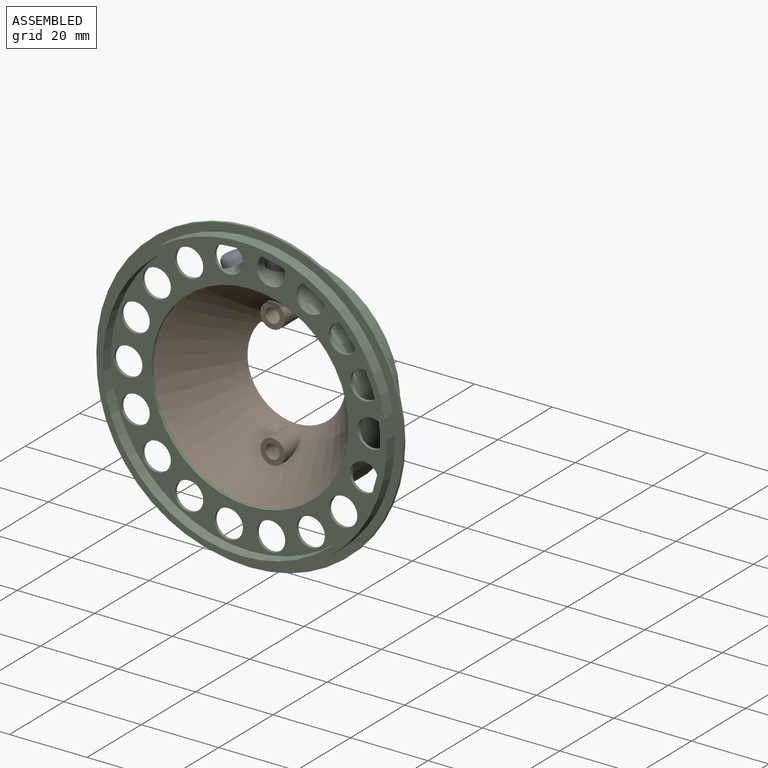
[diagram: assembled view]
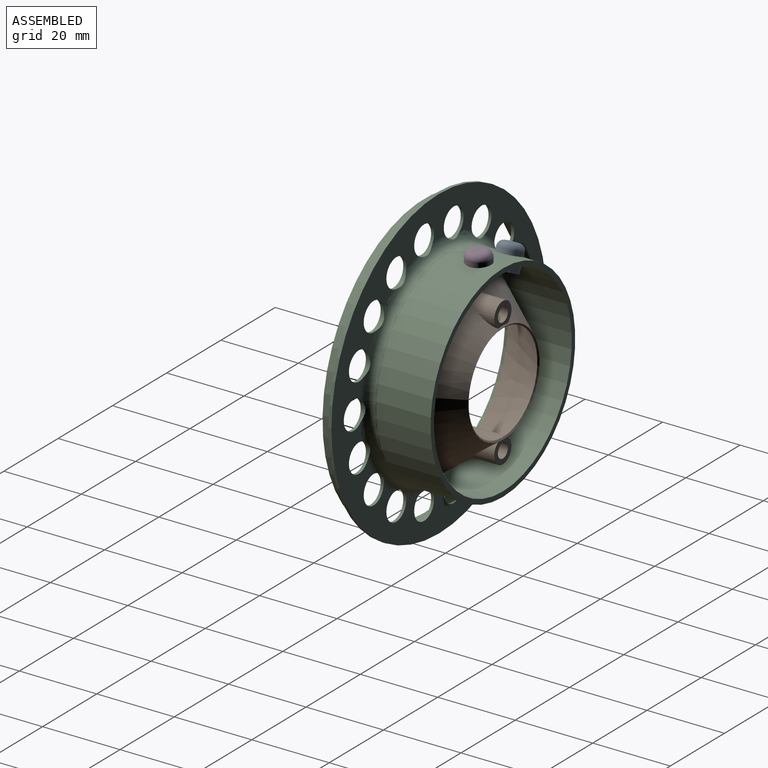
[diagram: assembled view, second angle]
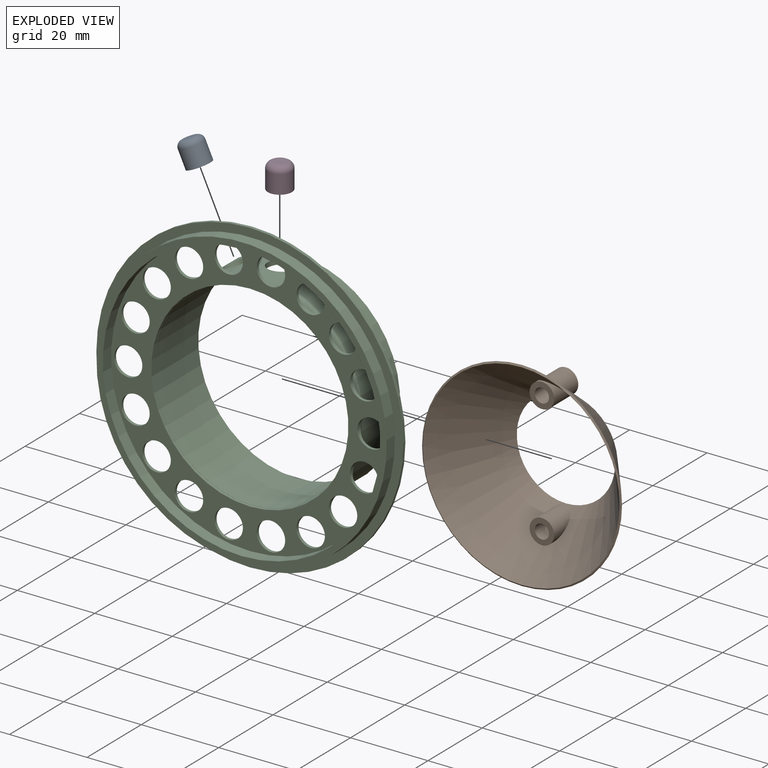
[diagram: exploded view]
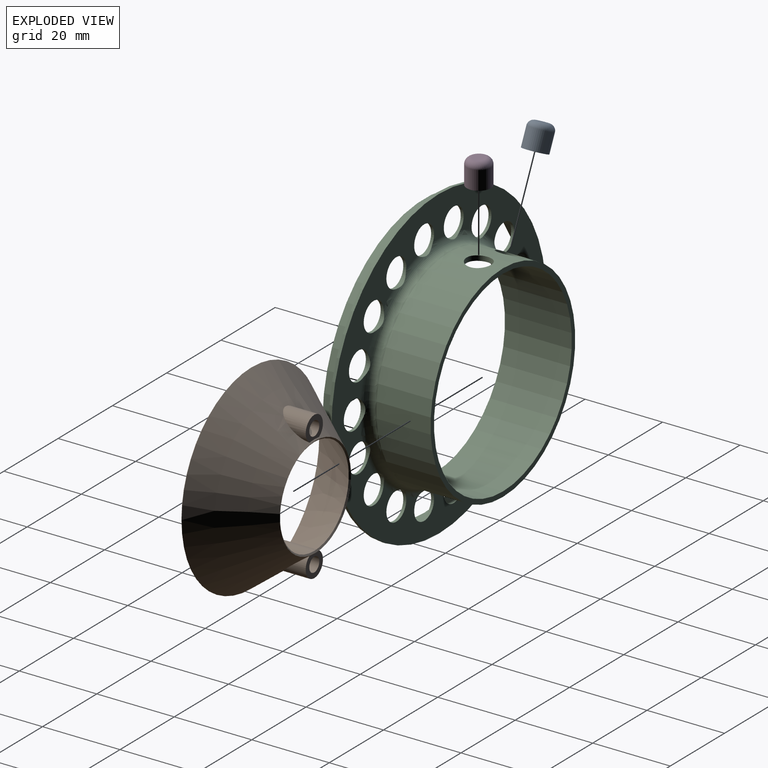
[diagram: exploded view, second angle]
ASSEMBLY  parts=4 mates=2
PART A: 4 faces, bbox 6.7x6.4x6.7 mm
  f0: cylinder r=3.11mm len=6.22mm, axis (0,1,0), area 94.3mm2, adj f2,f3
  f1: plane 3.18x3.18mm, normal (0,-1,0), area 7.9mm2, adj f3
  f2: plane 6.22x6.22mm, normal (0,1,0), area 30.4mm2, adj f0
  f3: torus R=1.59mm, axis (0,-1,0), area 38.5mm2, adj f0,f1
PART B: 20 faces, bbox 51.6x16.8x51.6 mm
  f0: cone r=25.8mm half-angle=37.6deg, axis (0,-1,0), area 2447mm2, adj f2,f3,f9,f10,f15,f16
  f1: cone r=25.4mm half-angle=37.6deg, axis (0,-1,0), area 2389.5mm2, adj f2,f3,f5,f13
  f2: cone r=12.7mm half-angle=52.4deg, axis (0,1,0), area 41.2mm2, adj f0,f1
  f3: cone r=25.4mm half-angle=52.4deg, axis (0,1,0), area 81.7mm2, adj f0,f1
  f4: plane 6.35x6.35mm, normal (0,-1,0), area 21mm2, adj f5,f6
  f5: cylinder r=3.17mm len=8.89mm, axis (0,1,0), area 90.8mm2, adj f1,f4
  f6: cylinder r=1.84mm len=7.16mm, axis (0,1,0), area 54.3mm2, adj f4,f7
  f7: cone r=25.4mm half-angle=37.6deg, axis (0,-1,0), area 17.5mm2, adj f6
  f8: cylinder r=1.84mm len=5.69mm, axis (0,1,0), area 38.9mm2, adj f10,f11
  f9: cylinder r=3.17mm len=7.42mm, axis (0,1,0), area 71.9mm2, adj f0,f10
  f10: plane 6.35x5.82mm, normal (0,1,0), area 19.5mm2, adj f0,f8,f9
  f11: cone r=25.8mm half-angle=37.6deg, axis (0,-1,0), area 17.5mm2, adj f8
  f12: plane 6.35x6.35mm, normal (0,-1,0), area 21mm2, adj f13,f14
  f13: cylinder r=3.17mm len=8.89mm, axis (0,1,0), area 90.9mm2, adj f1,f12
  f14: cylinder r=1.84mm len=7.16mm, axis (0,1,0), area 54.3mm2, adj f12,f19
  f15: plane 6.35x5.82mm, normal (0,1,0), area 19.5mm2, adj f0,f16,f17
  f16: cylinder r=3.17mm len=7.42mm, axis (0,1,0), area 71.9mm2, adj f0,f15
  f17: cylinder r=1.84mm len=5.69mm, axis (0,1,0), area 38.9mm2, adj f15,f18
  f18: cone r=25.8mm half-angle=37.6deg, axis (0,-1,0), area 17.5mm2, adj f17
  f19: cone r=25.4mm half-angle=37.6deg, axis (0,-1,0), area 17.5mm2, adj f14
PART C: 33 faces, bbox 79.2x20.3x79.2 mm
  f0: plane 71.64x71.64mm, normal (0,-1,0), area 1241mm2, adj f8,f11,f15,f16,f17,f18,f19,f20
  f1: plane 50.86x50.86mm, normal (0,-1,0), area 4.8mm2, adj f2,f8
  f2: cylinder r=25.4mm len=50.8mm, axis (0,1,0), area 2571.3mm2, adj f1,f4,f5,f6
  f3: cylinder r=26.67mm len=53.34mm, axis (0,1,0), area 2277.4mm2, adj f4,f5,f6,f14
  f4: plane 53.34x53.34mm, normal (0,1,0), area 207.8mm2, adj f2,f3
  f5: cylinder r=3.17mm len=6.35mm, axis (0,0,1), area 25.4mm2, adj f2,f3
  f6: cylinder r=3.17mm len=6.38mm, axis (-0.42,0,0.91), area 25.4mm2, adj f2,f3
  f7: plane 79.25x79.25mm, normal (0,1,0), area 1596.6mm2, adj f9,f14,f15,f16,f17,f18,f19,f20
  f8: cylinder r=25.43mm len=50.86mm, axis (0,1,0), area 121.8mm2, adj f0,f1
  f9: cylinder r=39.62mm len=79.25mm, axis (0,1,0), area 189.7mm2, adj f7,f10
  f10: plane 79.25x79.25mm, normal (0,-1,0), area 522.9mm2, adj f9,f12
  f11: cylinder r=35.82mm len=71.64mm, axis (0,1,0), area 686mm2, adj f0,f13
  f12: cylinder r=37.46mm len=74.93mm, axis (0,1,0), area 717.5mm2, adj f10,f13
  f13: plane 74.93x74.93mm, normal (0,-1,0), area 378.7mm2, adj f11,f12
  f14: torus R=29.21mm, axis (0,-1,0), area 584.3mm2, adj f3,f7,f15,f16,f17,f18,f19,f20
  f15: cylinder r=3.66mm len=7.32mm, axis (0,-1,0), area 19mm2, adj f0,f7,f14
  f16: cylinder r=3.66mm len=7.32mm, axis (0,-1,0), area 19mm2, adj f0,f7,f14
  f17: cylinder r=3.66mm len=7.32mm, axis (0,-1,0), area 19mm2, adj f0,f7,f14
  f18: cylinder r=3.66mm len=7.32mm, axis (0,-1,0), area 19mm2, adj f0,f7,f14
  f19: cylinder r=3.66mm len=7.32mm, axis (0,-1,0), area 19mm2, adj f0,f7,f14
  f20: cylinder r=3.66mm len=7.32mm, axis (0,-1,0), area 19mm2, adj f0,f7,f14
  f21: cylinder r=3.66mm len=7.32mm, axis (0,-1,0), area 19mm2, adj f0,f7,f14
  f22: cylinder r=3.66mm len=7.32mm, axis (0,-1,0), area 19mm2, adj f0,f7,f14
  f23: cylinder r=3.66mm len=7.32mm, axis (0,-1,0), area 19mm2, adj f0,f7,f14
  f24: cylinder r=3.66mm len=7.32mm, axis (0,-1,0), area 19mm2, adj f0,f7,f14
  f25: cylinder r=3.66mm len=7.32mm, axis (0,-1,0), area 19mm2, adj f0,f7,f14
  f26: cylinder r=3.66mm len=7.32mm, axis (0,-1,0), area 19mm2, adj f0,f7,f14
  f27: cylinder r=3.66mm len=7.32mm, axis (0,-1,0), area 19.1mm2, adj f0,f7,f14
  f28: cylinder r=3.66mm len=7.32mm, axis (0,-1,0), area 19.1mm2, adj f0,f7,f14
  f29: cylinder r=3.66mm len=7.32mm, axis (0,-1,0), area 19.1mm2, adj f0,f7,f14
  f30: cylinder r=3.66mm len=7.32mm, axis (0,-1,0), area 19.1mm2, adj f0,f7,f14
  f31: cylinder r=3.66mm len=7.32mm, axis (0,-1,0), area 19mm2, adj f0,f7,f14
  f32: cylinder r=3.66mm len=7.32mm, axis (0,-1,0), area 19mm2, adj f0,f7,f14
PART D: same geometry as A
PLACE A rot(axis=(-0.95,-0.21,-0.21),92.7deg) t=(26.13,25.66,25.28)mm
PLACE B t=(35.8,31.87,4.55)mm
PLACE C t=(35.8,31.87,4.55)mm
PLACE D rot(axis=(-1,0,0),90deg) t=(35.8,25.66,27.42)mm
MATE fastened D.f0 <-> C.f5  axis (0,0,-1) through (35.8,25.66,27.42)mm
MATE fastened A.f0 <-> C.f6  axis (0.42,0,-0.91) through (26.13,25.66,25.28)mm
